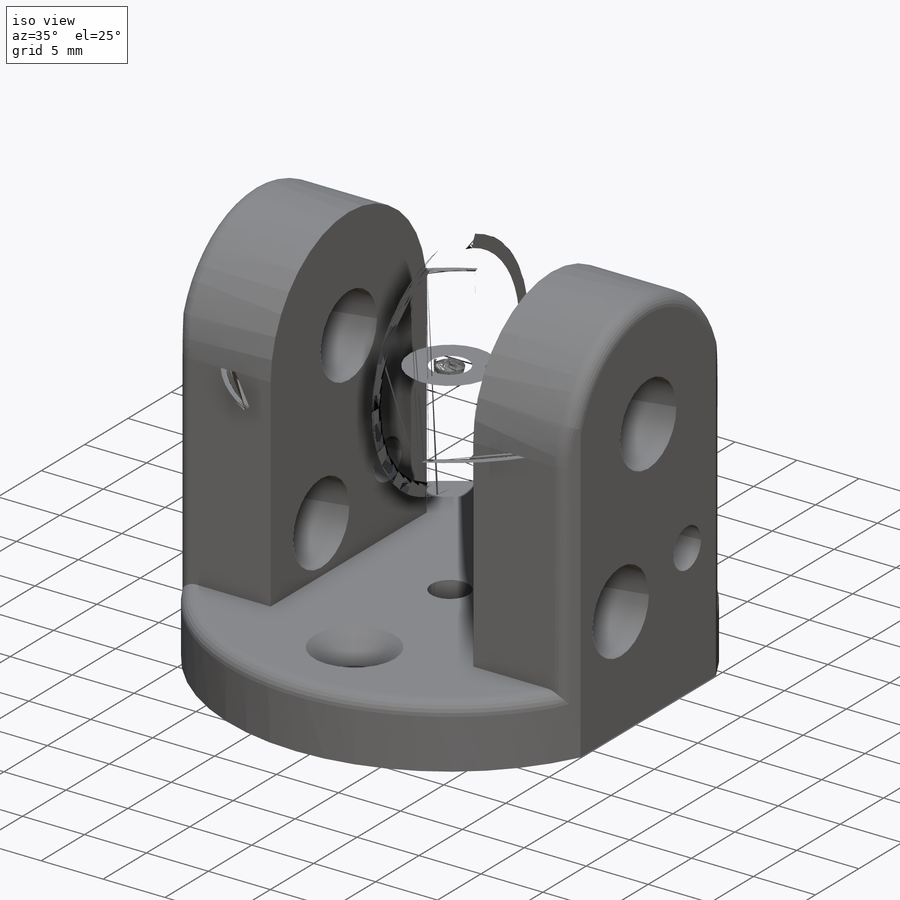
[diagram: iso view]
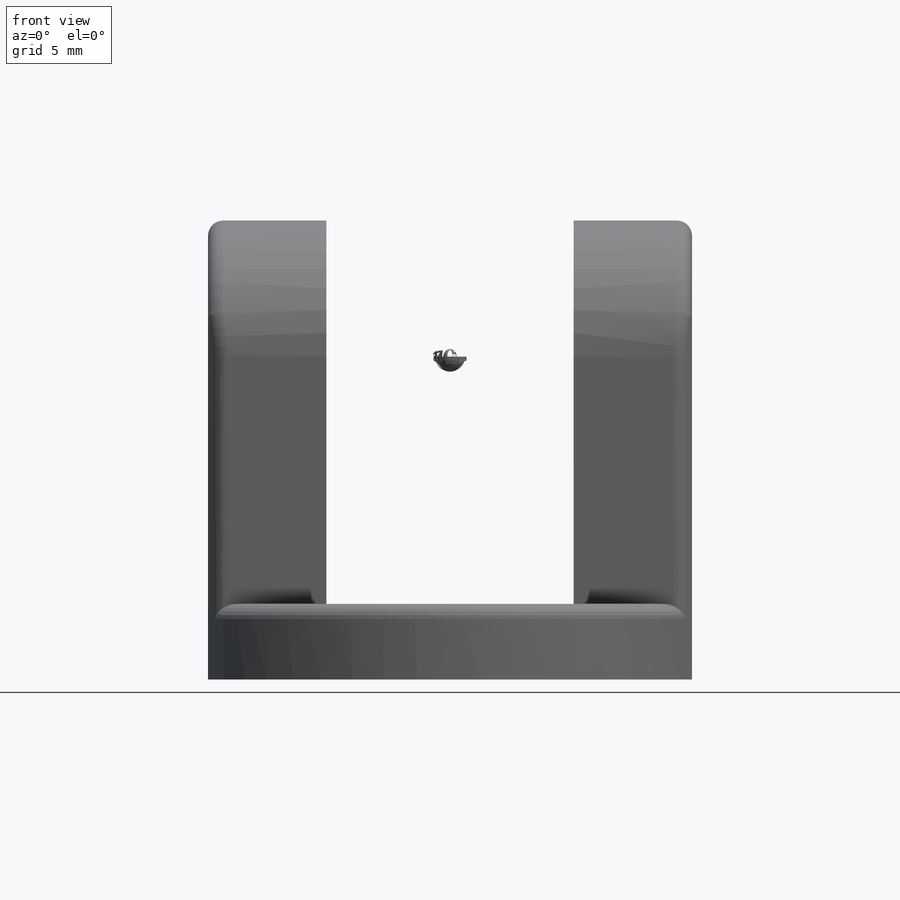
[diagram: front view]
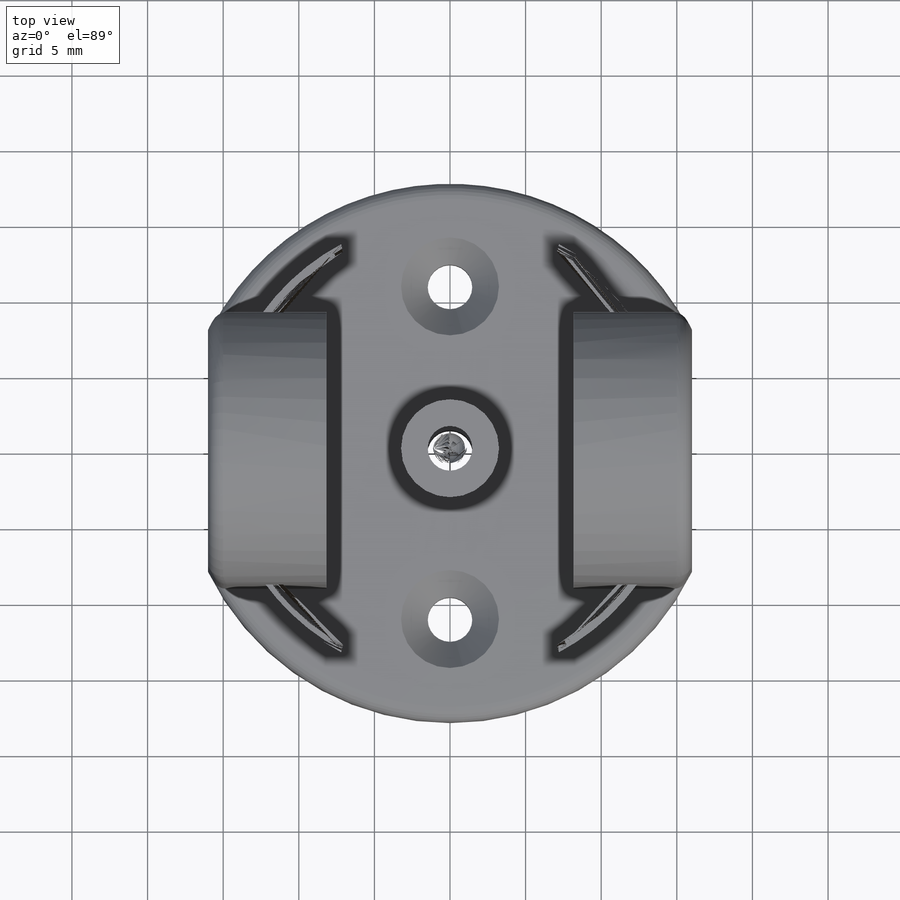
[diagram: top view]
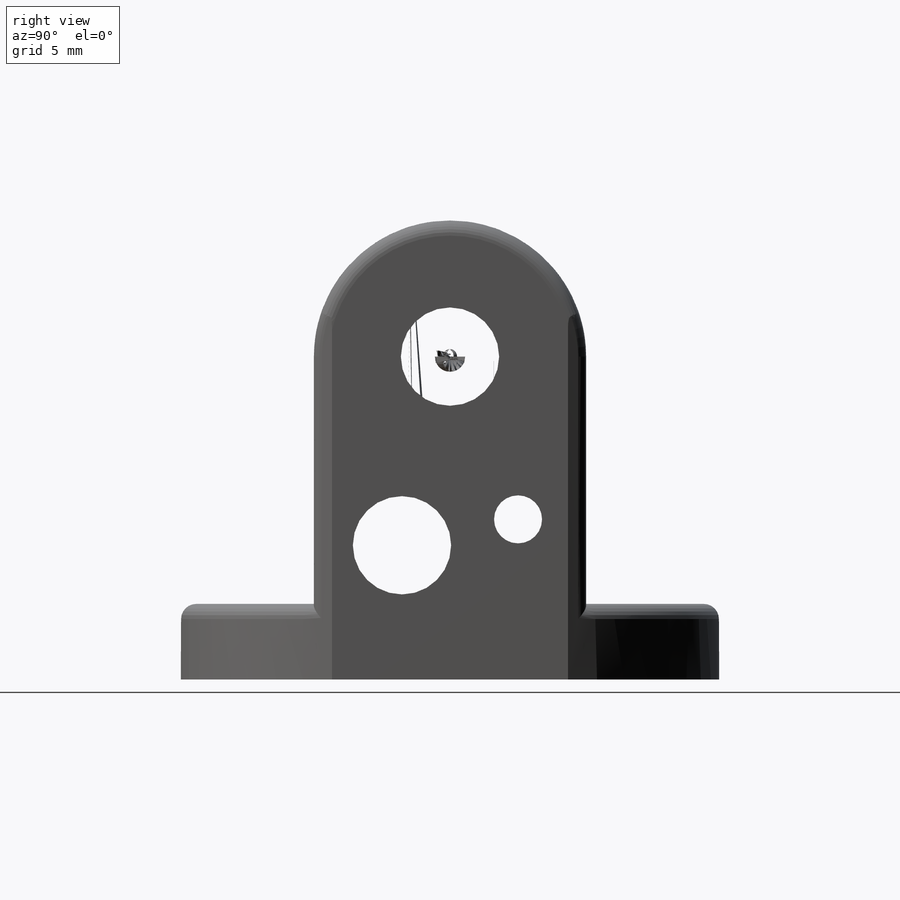
[diagram: right view]
SOLIDWORKS PART (.sldprt)
format: sldprt  version: not decoded by parser v0  size: 537,088 bytes
history: native  units: mm
features: sketch x12, cut_extrude x6, extrude x4, fillet x2, material x1, hole x1 + 2 further entries (+22 scaffold rows collapsed; 6 parser-record rows omitted)
feature tree (56):
  scaffold x22  (default folders/planes/origin — collapsed)
  material  "ABS"
  "params_print"
  parser-record x6  (decoder bookkeeping rows leaked as tree rows — omitted from the tree; the rows remain in map.json)
  "params_finger_t"
  sketch  "Sketch1"  dims[c1.D1=6.35mm c1.D2=18.0mm c1.D4=~8.000776mm c1.D3=0.8mm c2.D4=0.7mm c2.D3=~16.35238mm]
  extrude  "Main Body"  Depth=32mm
  sketch  "Sketch2"  dims[D1=35.6mm]
  extrude  "Base Body"  Depth=3mm
  sketch  "Sketch5"  dims[D1=0.0mm]
  cut_extrude  "Finger Clearance"  Depth=16mm
  sketch  "Sketch3"
  cut_extrude  "Outer Cut"  [1 undecoded]
  sketch  "Sketch7"  dims[D1=0.0mm D2=3.0mm]
  extrude  "Base Flange"  Depth=2mm
  sketch  "Sketch6"  dims[D1=3.0mm D3=1.0mm D4=22.0mm D2=0.0mm]
  cut_extrude  "Tendon Port"  [1 undecoded]
  sketch  "Sketch14"  dims[D1=~10.666667mm]
  extrude  "Central Anchor"  [1 undecoded]
  sketch  "Sketch9"  dims[D1=6.5mm]
  cut_extrude  "Print Clearance - Base Pins"  [1 undecoded]
  sketch  "Sketch11"  dims[D1=0.0mm]
  cut_extrude  "Print Clearance - Finger"  Depth=16.35mm
  fillet  "Contouring"  Radius=1mm
  fillet  "Fit Contouring"  Radius=0.5mm
  hole  "CSK for #4 Flat Head Socket Cap Screw1"  Diameter=2.9464mm Depth=5.033365mm
  sketch  "Sketch13"
  sketch  "Sketch12"  dims[hole-wizard template sketch: 55 standard entries collapsed; hole parameters kept: c17.Thru Hole Depth=~5.033365mm c17.Near C'Sink Dia.=6.477mm c17.D4=~3.666174mm c17.Near C'Sink Angle=82.0deg]
  sketch  "Sketch15"  dims[D1=18.35mm D2=3.175mm]
  cut_extrude  "Backstop Pin Clearance"  [1 undecoded]
decode coverage: 18 of 25 modeling features carry decoded parameters; 2 rows unclassified (native names shown)
note: ~ marks probable driven/reference dimensions
note: 5 parameter values undecoded
summary: no parameter record found for 5 features
note: suppression state not decoded; provenance and decode notes live in map.json
